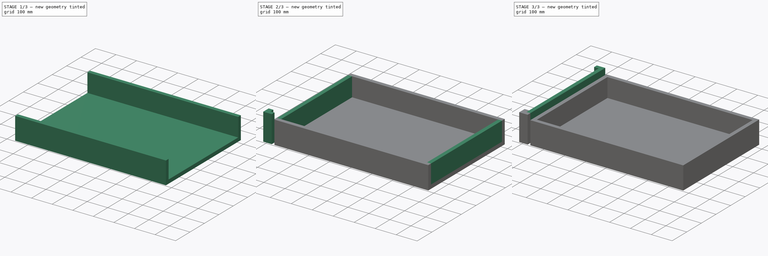
[diagram: build sequence overview — one tinted view per stage of 3, left to right]
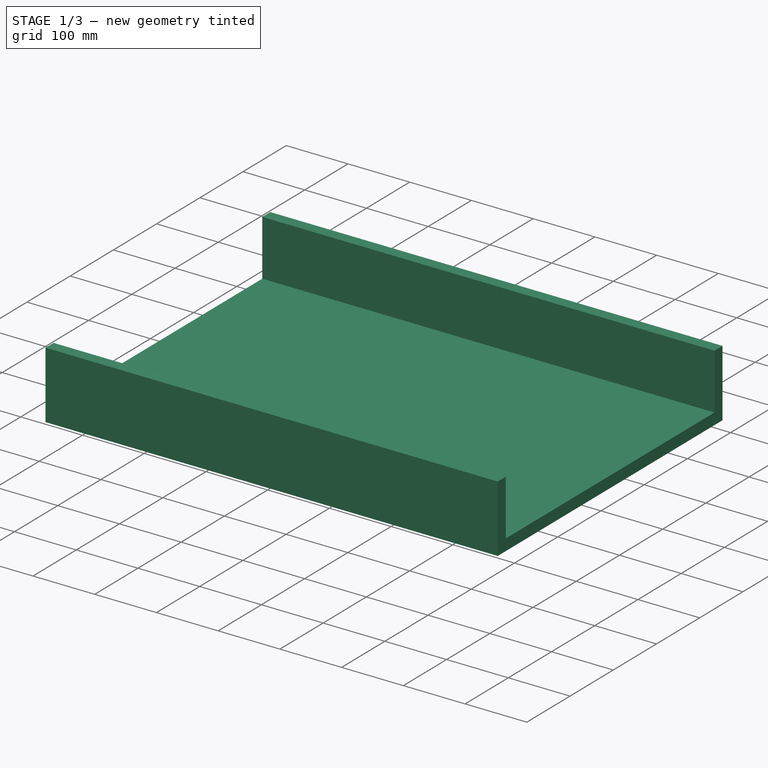
[diagram: stage 1 of 3 — iso view after this stage's code; geometry added in this stage tinted green]
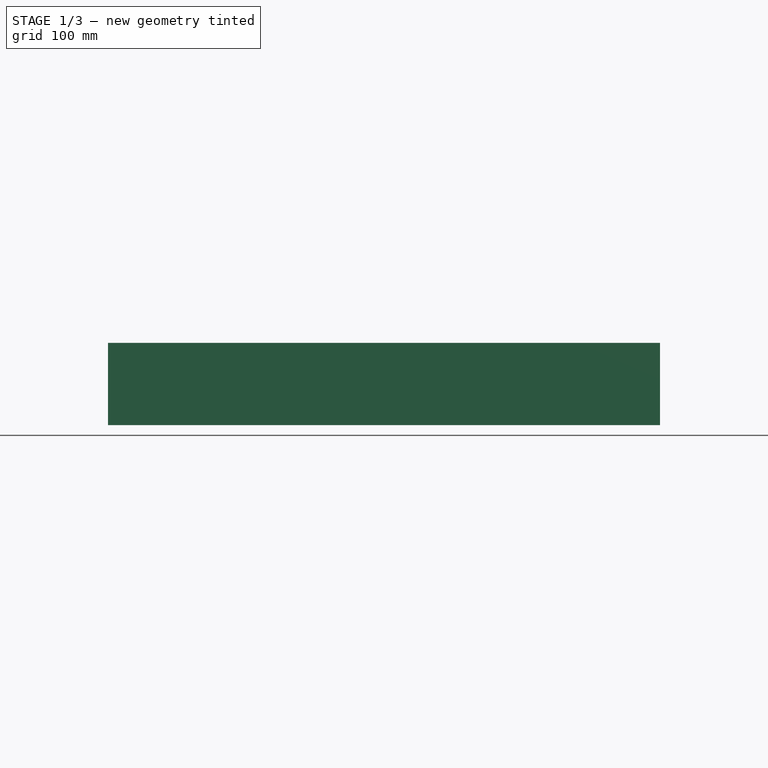
[diagram: stage 1 of 3 — front view after this stage's code; geometry added in this stage tinted green]
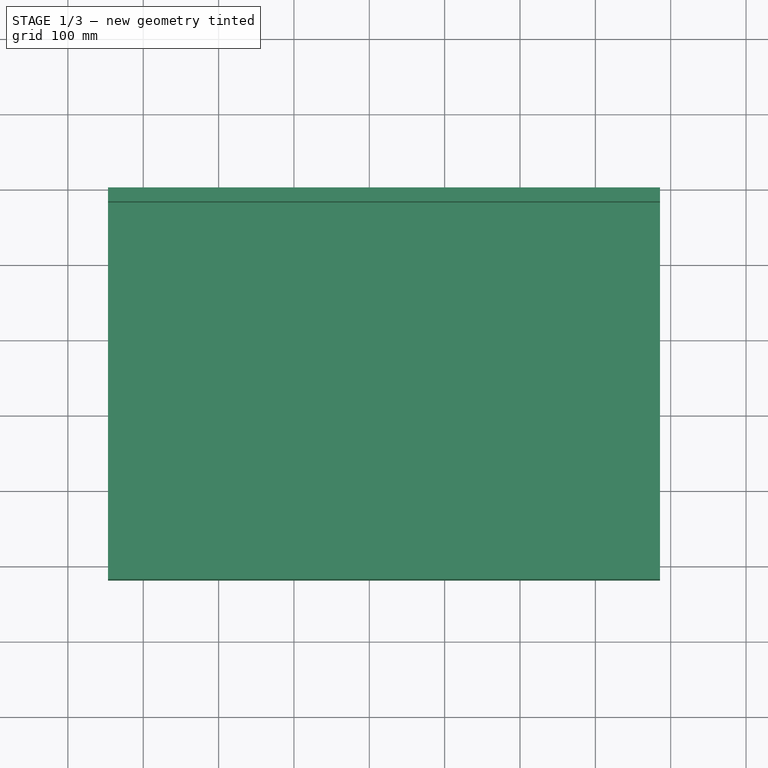
[diagram: stage 1 of 3 — top view after this stage's code; geometry added in this stage tinted green]
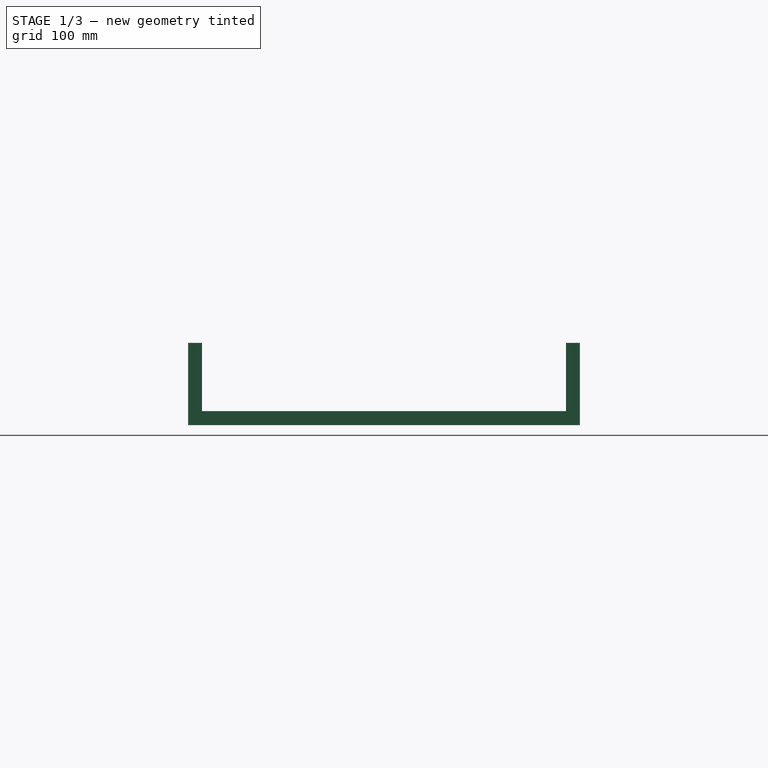
[diagram: stage 1 of 3 — right view after this stage's code; geometry added in this stage tinted green]
FCSTD DOCUMENT  (FreeCAD 0.19R24267 +148 (Git))
Label: gaveta
License: All rights reserved
LicenseURL: http://en.wikipedia.org/wiki/All_rights_reserved
objects: Sketcher::SketchObject×7, PartDesign::Pad×7, PartDesign::Body×2
note: 23 computed .brp shape members not serialized (recipe doc carries the construction recipe); baked Part::Feature solids carry a one-line shape summary decoded from their .brp

FEATURE [PartDesign::Body] Body  label="Borda"
  Group = -> [Sketch,Pad,Sketch001,Pad001,Sketch002,Pad002,Sketch003,Pad003]
  Origin = -> Origin
  Tip = -> Pad003
FEATURE [Sketcher::SketchObject] Sketch004
  FullyConstrained = true
  MapMode = 5
  Support = -> [XY_Plane001]
  expr: Constraints[10] = 758 - 12.7 - 12.7
  expr: Constraints[9] = 40.5 + 12.7
  sketch-geometry (4):
    g0: LineSegment StartX=53.2 StartY=501.5 StartZ=0 EndX=785.8 EndY=501.5 EndZ=0
    g1: LineSegment StartX=785.8 StartY=501.5 StartZ=0 EndX=785.8 EndY=-18.5 EndZ=0
    g2: LineSegment StartX=785.8 StartY=-18.5 StartZ=0 EndX=53.2 EndY=-18.5 EndZ=0
    g3: LineSegment StartX=53.2 StartY=-18.5 StartZ=0 EndX=53.2 EndY=501.5 EndZ=0
  constraints (12):
    c: Coincident(g0,g1)
    c: Coincident(g1,g2)
    c: Coincident(g2,g3)
    c: Coincident(g3,g0)
    c: Horizontal(g0)
    c: Horizontal(g2)
    c: Vertical(g1)
    c: Vertical(g3)
    c: DistanceY(g-1,g2) = -18.5
    c: DistanceX(g-1,g2) = 53.2
    c: DistanceX(g2,g2) = 732.6
    c: DistanceY(g1,g1) = 520
FEATURE [PartDesign::Pad] Pad004
  Direction = (1,1,1)
  Length = 18.5
  Length2 = 100
  Profile = -> Sketch004
  Type = 0
FEATURE [Sketcher::SketchObject] Sketch005
  ExternalGeometry = -> [Pad004]
  FullyConstrained = true
  MapMode = 5
  Placement = pos=(0,0,18.5) rot=(0,0,1;0rad)
  Support = -> [Pad004]
  sketch-geometry (8):
    g0: LineSegment StartX=53.2 StartY=501.5 StartZ=0 EndX=785.8 EndY=501.5 EndZ=0
    g1: LineSegment StartX=785.8 StartY=501.5 StartZ=0 EndX=785.8 EndY=483 EndZ=0
    g2: LineSegment StartX=785.8 StartY=483 StartZ=0 EndX=53.2 EndY=483 EndZ=0
    g3: LineSegment StartX=53.2 StartY=483 StartZ=0 EndX=53.2 EndY=501.5 EndZ=0
    g4: LineSegment StartX=53.2 StartY=0 StartZ=0 EndX=785.8 EndY=0 EndZ=0
    g5: LineSegment StartX=785.8 StartY=0 StartZ=0 EndX=785.8 EndY=-18.5 EndZ=0
    g6: LineSegment StartX=785.8 StartY=-18.5 StartZ=0 EndX=53.2 EndY=-18.5 EndZ=0
    g7: LineSegment StartX=53.2 StartY=-18.5 StartZ=0 EndX=53.2 EndY=0 EndZ=0
  constraints (22):
    c: Coincident(g0,g1)
    c: Coincident(g1,g2)
    c: Coincident(g2,g3)
    c: Coincident(g3,g0)
    c: Horizontal(g0)
    c: Horizontal(g2)
    c: Vertical(g1)
    c: Vertical(g3)
    c: Coincident(g4,g5)
    c: Coincident(g5,g6)
    c: Coincident(g6,g7)
    c: Coincident(g7,g4)
    c: Horizontal(g4)
    c: Horizontal(g6)
    c: Vertical(g5)
    c: Vertical(g7)
    c: Coincident(g6,g-4)
    c: Coincident(g-3,g0)
    c: DistanceY(g3,g3) = 18.5
    c: Equal(g3,g5)
    c: DistanceX(g0,g5) = 0
    c: DistanceX(g0,g6) = 0
FEATURE [PartDesign::Pad] Pad005
  BaseFeature = -> Pad004
  Direction = (1,1,1)
  Length = 90.5
  Length2 = 100
  Profile = -> Sketch005
  Type = 0
  expr: Length = 109 - 18.5
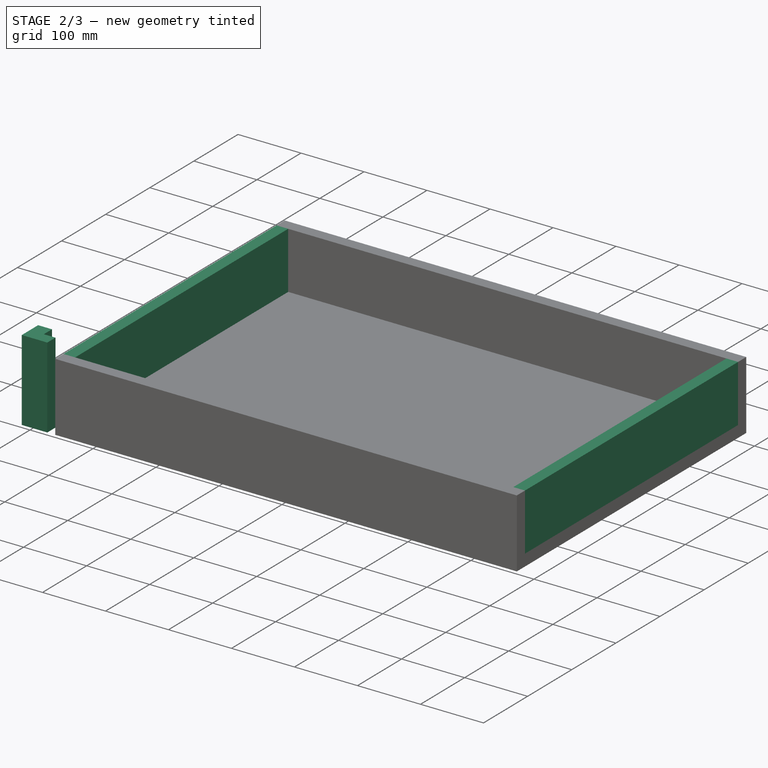
[diagram: stage 2 of 3 — iso view after this stage's code; geometry added in this stage tinted green]
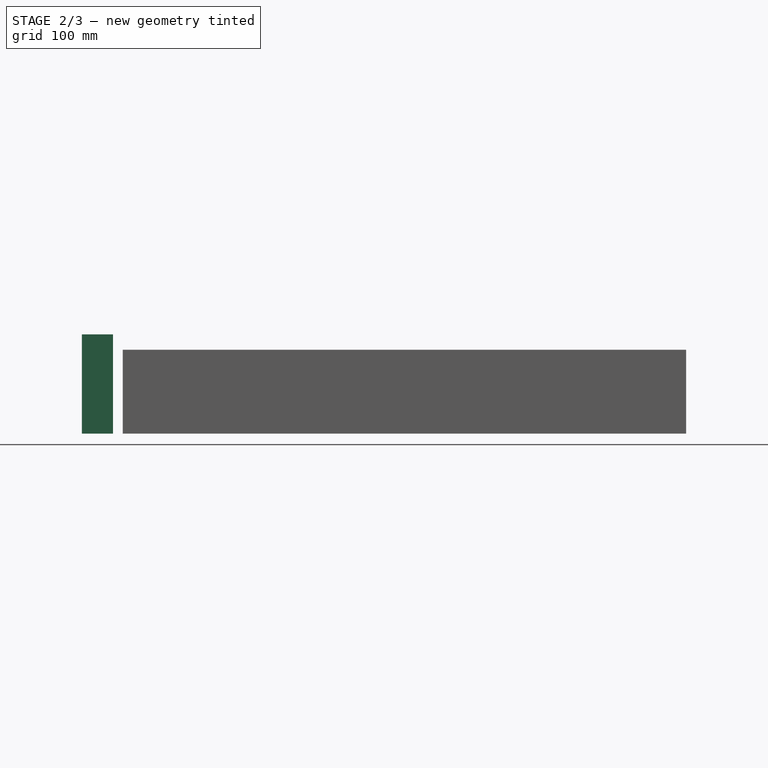
[diagram: stage 2 of 3 — front view after this stage's code; geometry added in this stage tinted green]
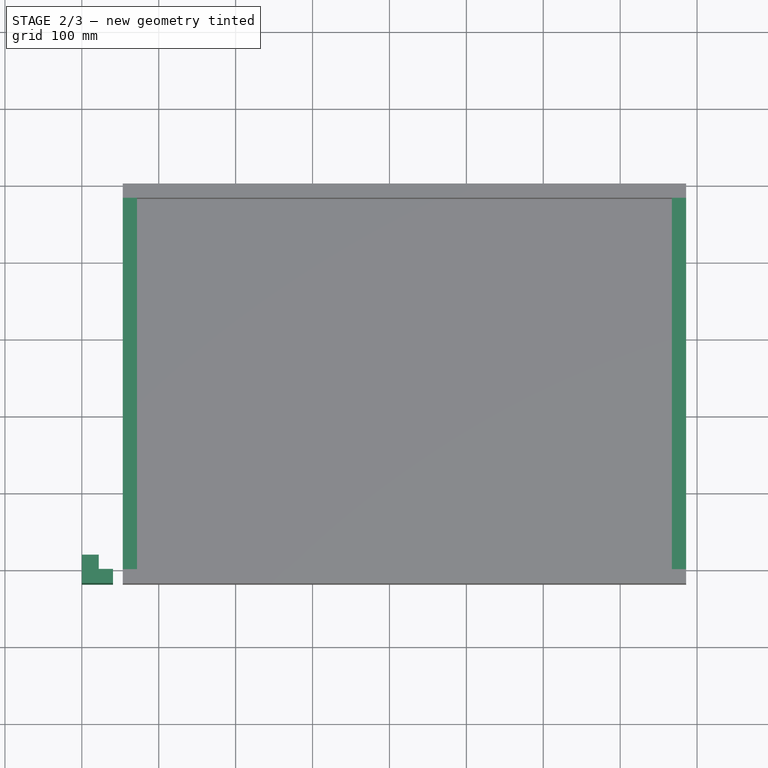
[diagram: stage 2 of 3 — top view after this stage's code; geometry added in this stage tinted green]
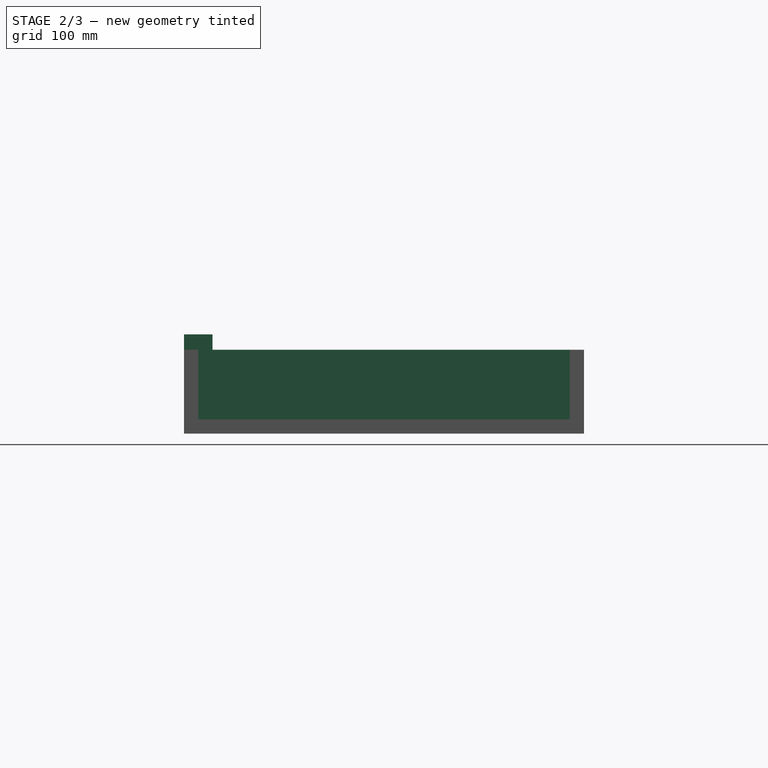
[diagram: stage 2 of 3 — right view after this stage's code; geometry added in this stage tinted green]
FEATURE [Sketcher::SketchObject] Sketch
  FullyConstrained = true
  MapMode = 5
  Placement = pos=(0,0,0) rot=(1,0,0;1.5708rad)
  Support = -> [XZ_Plane]
  sketch-geometry (4):
    g0: LineSegment StartX=0 StartY=129 StartZ=0 EndX=40.5 EndY=129 EndZ=0
    g1: LineSegment StartX=40.5 StartY=129 StartZ=0 EndX=40.5 EndY=0 EndZ=0
    g2: LineSegment StartX=40.5 StartY=0 StartZ=0 EndX=0 EndY=0 EndZ=0
    g3: LineSegment StartX=0 StartY=0 StartZ=0 EndX=0 EndY=129 EndZ=0
  constraints (11):
    c: Coincident(g0,g1)
    c: Coincident(g1,g2)
    c: Coincident(g2,g3)
    c: Coincident(g3,g0)
    c: Horizontal(g0)
    c: Horizontal(g2)
    c: Vertical(g1)
    c: Vertical(g3)
    c: Coincident(g2,g-1)
    c: DistanceX(g2,g2) = 40.5
    c: DistanceY(g1,g1) = 129
FEATURE [PartDesign::Pad] Pad
  Direction = (1,1,1)
  Length = 18.5
  Length2 = 100
  Placement = pos=(0,0,0) rot=(1,0,0;1.5708rad)
  Profile = -> Sketch
  Type = 0
FEATURE [Sketcher::SketchObject] Sketch001
  ExternalGeometry = -> [Pad]
  FullyConstrained = true
  MapMode = 5
  Placement = pos=(0,1e-16,0) rot=(-1,0,0;1.5708rad)
  Support = -> [Pad]
  sketch-geometry (4):
    g0: LineSegment StartX=0 StartY=0 StartZ=0 EndX=22 EndY=0 EndZ=0
    g1: LineSegment StartX=22 StartY=0 StartZ=0 EndX=22 EndY=-129 EndZ=0
    g2: LineSegment StartX=22 StartY=-129 StartZ=0 EndX=0 EndY=-129 EndZ=0
    g3: LineSegment StartX=0 StartY=-129 StartZ=0 EndX=0 EndY=0 EndZ=0
  constraints (11):
    c: Coincident(g0,g1)
    c: Coincident(g1,g2)
    c: Coincident(g2,g3)
    c: Coincident(g3,g0)
    c: Horizontal(g0)
    c: Horizontal(g2)
    c: Vertical(g1)
    c: Vertical(g3)
    c: Coincident(g0,g-1)
    c: DistanceY(g2,g-3) = 0
    c: DistanceX(g1,g-3) = 18.5
FEATURE [PartDesign::Pad] Pad001
  BaseFeature = -> Pad
  Direction = (1,1,1)
  Length = 18.5
  Length2 = 100
  Placement = pos=(0,0,0) rot=(1,0,0;1.5708rad)
  Profile = -> Sketch001
  Type = 0
FEATURE [Sketcher::SketchObject] Sketch006
  ExternalGeometry = -> [Pad005]
  FullyConstrained = true
  MapMode = 5
  Placement = pos=(0,0,18.5) rot=(0,0,1;0rad)
  Support = -> [Pad005]
  sketch-geometry (8):
    g0: LineSegment StartX=53.2 StartY=483 StartZ=0 EndX=71.7 EndY=483 EndZ=0
    g1: LineSegment StartX=71.7 StartY=483 StartZ=0 EndX=71.7 EndY=0 EndZ=0
    g2: LineSegment StartX=71.7 StartY=0 StartZ=0 EndX=53.2 EndY=0 EndZ=0
    g3: LineSegment StartX=53.2 StartY=0 StartZ=0 EndX=53.2 EndY=483 EndZ=0
    g4: LineSegment StartX=767.3 StartY=483 StartZ=0 EndX=785.8 EndY=483 EndZ=0
    g5: LineSegment StartX=785.8 StartY=483 StartZ=0 EndX=785.8 EndY=0 EndZ=0
    g6: LineSegment StartX=785.8 StartY=-5e-16 StartZ=0 EndX=767.3 EndY=-5e-16 EndZ=0
    g7: LineSegment StartX=767.3 StartY=-5e-16 StartZ=0 EndX=767.3 EndY=483 EndZ=0
  constraints (22):
    c: Coincident(g0,g1)
    c: Coincident(g1,g2)
    c: Coincident(g2,g3)
    c: Coincident(g3,g0)
    c: Horizontal(g0)
    c: Horizontal(g2)
    c: Vertical(g1)
    c: Vertical(g3)
    c: Coincident(g4,g5)
    c: Coincident(g5,g6)
    c: Coincident(g6,g7)
    c: Coincident(g7,g4)
    c: Horizontal(g4)
    c: Horizontal(g6)
    c: Vertical(g5)
    c: Vertical(g7)
    c: Coincident(g4,g-3)
    c: Coincident(g2,g-4)
    c: DistanceX(g0,g0) = 18.5
    c: Equal(g0,g6)
    c: DistanceY(g6,g2) = 0
    c: DistanceY(g4,g0) = 0
FEATURE [PartDesign::Pad] Pad006
  BaseFeature = -> Pad005
  Direction = (1,1,1)
  Length = 90.5
  Length2 = 100
  Profile = -> Sketch006
  Type = 0
  expr: Length = 109 - 18.5
FEATURE [PartDesign::Body] Body001  label="Gaveta"
  Group = -> [Sketch004,Pad004,Sketch005,Pad005,Sketch006,Pad006]
  Origin = -> Origin001
  Tip = -> Pad006
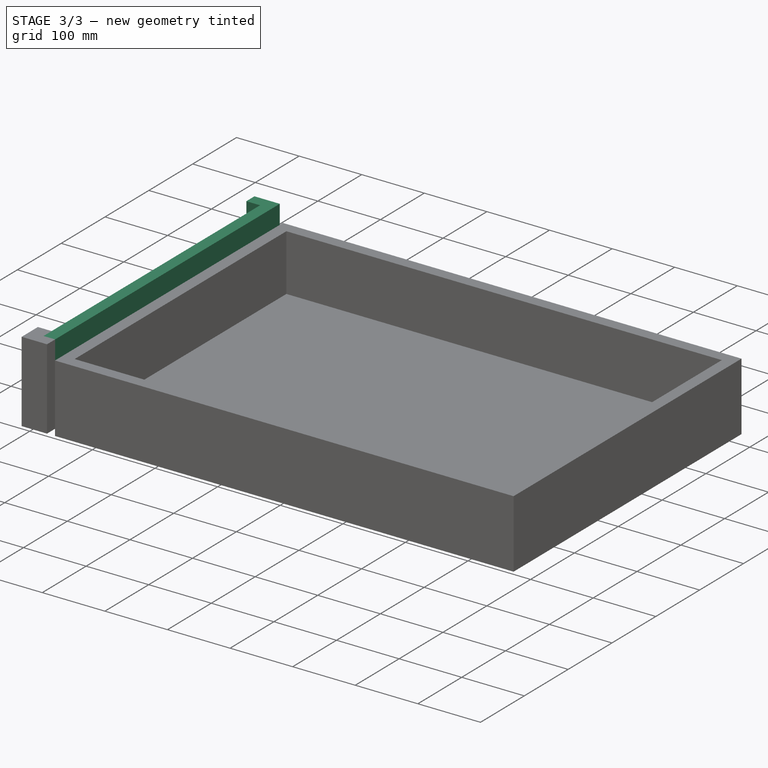
[diagram: stage 3 of 3 — iso view after this stage's code; geometry added in this stage tinted green]
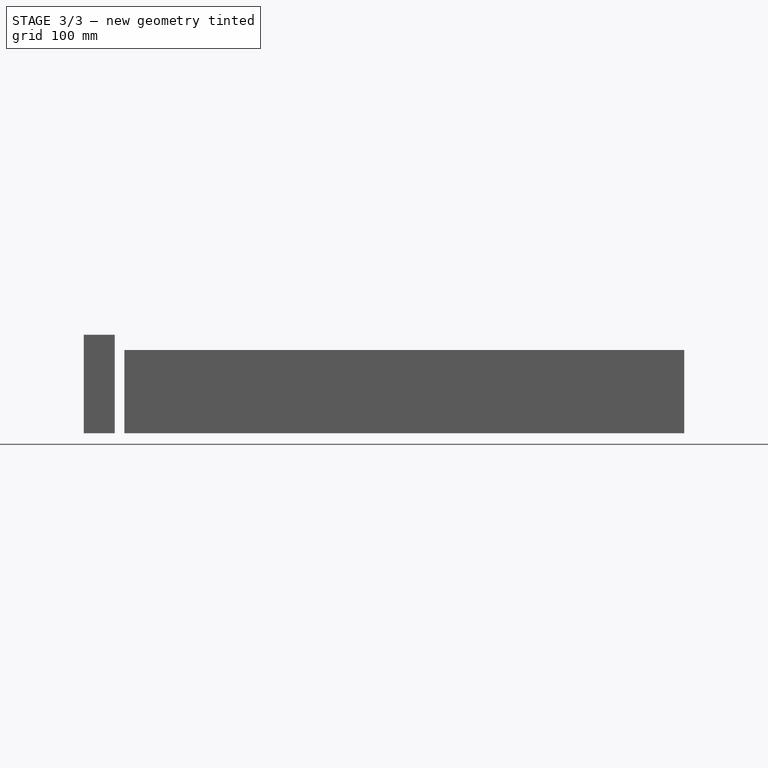
[diagram: stage 3 of 3 — front view after this stage's code; geometry added in this stage tinted green]
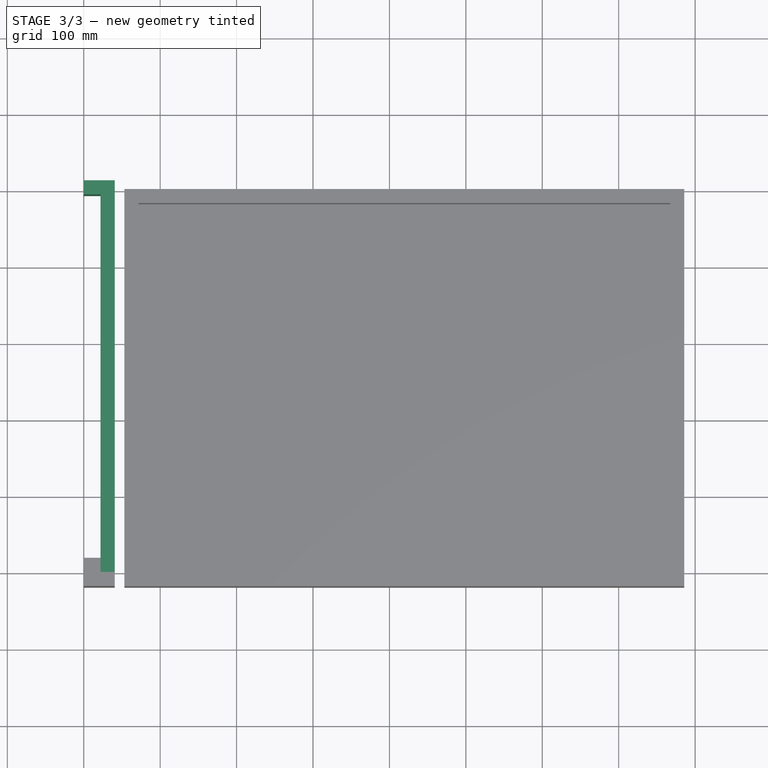
[diagram: stage 3 of 3 — top view after this stage's code; geometry added in this stage tinted green]
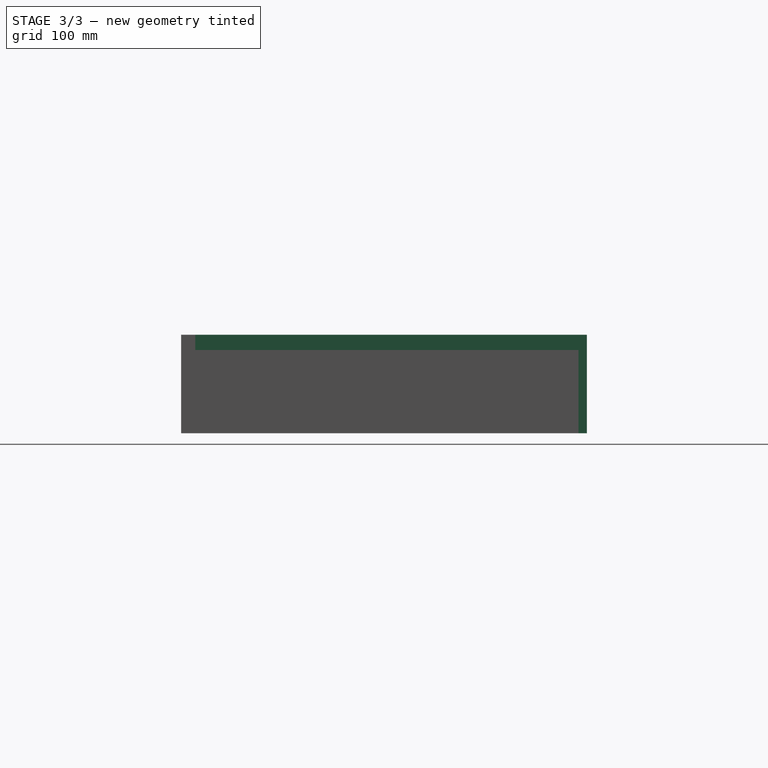
[diagram: stage 3 of 3 — right view after this stage's code; geometry added in this stage tinted green]
FEATURE [Sketcher::SketchObject] Sketch002
  ExternalGeometry = -> [Pad001]
  FullyConstrained = true
  MapMode = 5
  Placement = pos=(0,1e-16,0) rot=(-1,0,0;1.5708rad)
  Support = -> [Pad001]
  sketch-geometry (4):
    g0: LineSegment StartX=22 StartY=0 StartZ=0 EndX=40.5 EndY=0 EndZ=0
    g1: LineSegment StartX=40.5 StartY=0 StartZ=0 EndX=40.5 EndY=-129 EndZ=0
    g2: LineSegment StartX=40.5 StartY=-129 StartZ=0 EndX=22 EndY=-129 EndZ=0
    g3: LineSegment StartX=22 StartY=-129 StartZ=0 EndX=22 EndY=0 EndZ=0
  constraints (11):
    c: Coincident(g0,g1)
    c: Coincident(g1,g2)
    c: Coincident(g2,g3)
    c: Coincident(g3,g0)
    c: Horizontal(g0)
    c: Horizontal(g2)
    c: Vertical(g1)
    c: Vertical(g3)
    c: Coincident(g0,g-4)
    c: DistanceY(g1,g-3) = 0
    c: DistanceX(g-3,g1) = 0
FEATURE [PartDesign::Pad] Pad002
  BaseFeature = -> Pad001
  Direction = (1,1,1)
  Length = 512.5
  Length2 = 100
  Placement = pos=(0,0,0) rot=(1,0,0;1.5708rad)
  Profile = -> Sketch002
  Type = 0
  expr: Length = 531 - 18.5
FEATURE [Sketcher::SketchObject] Sketch003
  ExternalGeometry = -> [Pad002]
  FullyConstrained = true
  MapMode = 5
  Placement = pos=(22,0,0) rot=(0.707107,0,-0.707107;3.14159rad)
  Support = -> [Pad002]
  sketch-geometry (4):
    g0: LineSegment StartX=-129 StartY=-494 StartZ=0 EndX=7.958e-13 EndY=-494 EndZ=0
    g1: LineSegment StartX=7.958e-13 StartY=-494 StartZ=0 EndX=7.958e-13 EndY=-512.5 EndZ=0
    g2: LineSegment StartX=7.958e-13 StartY=-512.5 StartZ=0 EndX=-129 EndY=-512.5 EndZ=0
    g3: LineSegment StartX=-129 StartY=-512.5 StartZ=0 EndX=-129 EndY=-494 EndZ=0
  constraints (11):
    c: Coincident(g0,g1)
    c: Coincident(g1,g2)
    c: Coincident(g2,g3)
    c: Coincident(g3,g0)
    c: Horizontal(g0)
    c: Horizontal(g2)
    c: Vertical(g1)
    c: Vertical(g3)
    c: Coincident(g1,g-3)
    c: DistanceX(g2,g-4) = 0
    c: DistanceY(g3,g3) = 18.5
FEATURE [PartDesign::Pad] Pad003
  BaseFeature = -> Pad002
  Direction = (1,1,1)
  Length = 22
  Length2 = 100
  Placement = pos=(0,0,0) rot=(1,0,0;1.5708rad)
  Profile = -> Sketch003
  Type = 0
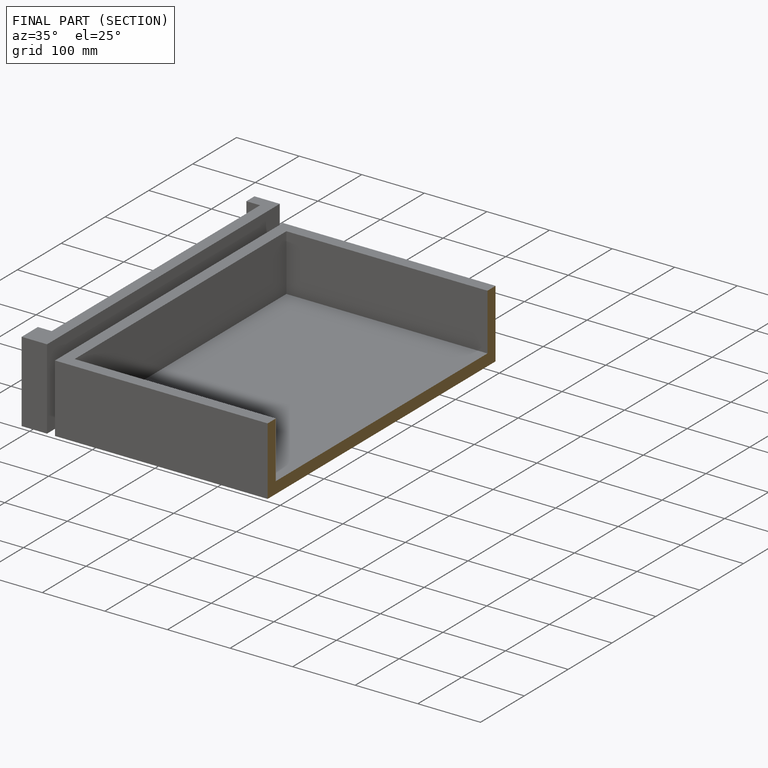
[diagram: finished part — half-section view (interior)]
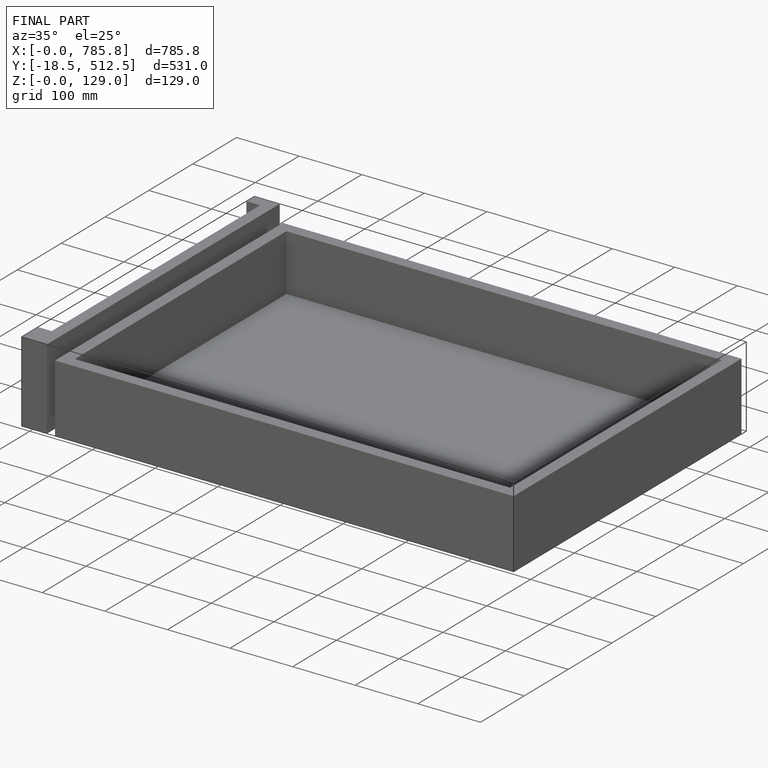
[diagram: finished part — iso view with bounding-box wireframe]
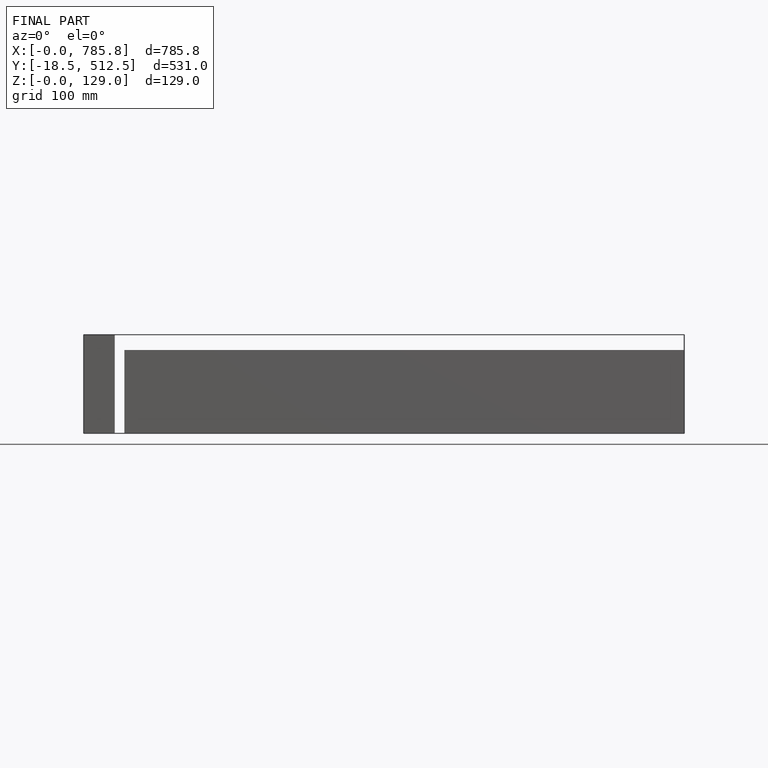
[diagram: finished part — front view with bounding-box wireframe]
